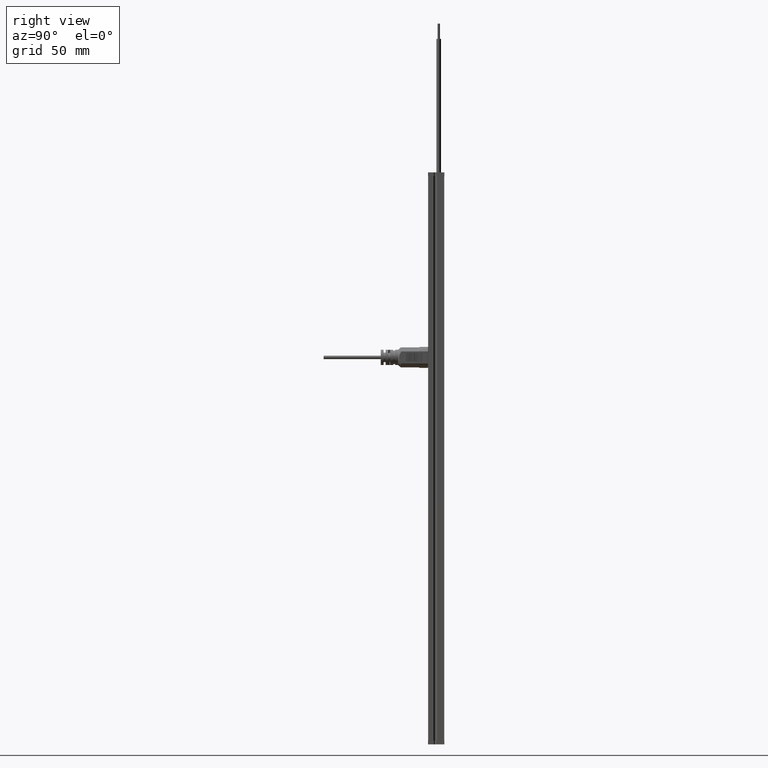
[diagram: clean part render]
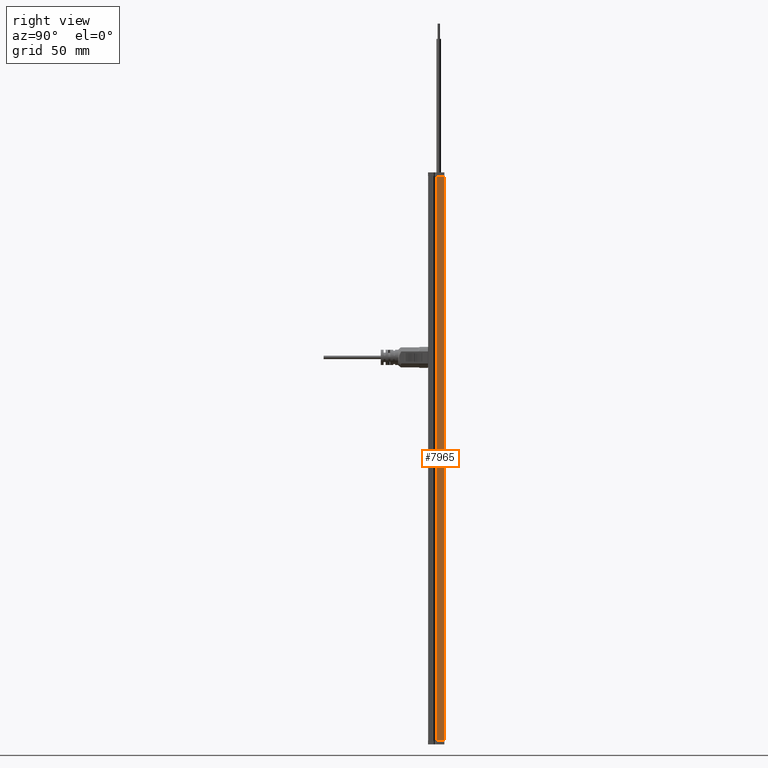
[diagram: same view with one face highlighted and labeled with its STEP entity id]
A machine part, right view. The second image highlights one B-rep face of the part: STEP entity #7965.
In plain terms, the highlighted planar face has unit normal (-1, 0, 0).
Its self-contained STEP definition (entity closure, byte-faithful):
#585 = LINE ( 'NONE', #11897, #7115 ) ;
#708 = DIRECTION ( 'NONE',  ( -4.565061778886335030E-16, -1.000000000000000000, 0.000000000000000000 ) ) ;
#1532 = PLANE ( 'NONE',  #10828 ) ;
#1885 = EDGE_LOOP ( 'NONE', ( #8197, #2493, #7843, #8564 ) ) ;
#2493 = ORIENTED_EDGE ( 'NONE', *, *, #4883, .F. ) ;
#2559 = VECTOR ( 'NONE', #7369, 1000.000000000000000 ) ;
#3053 = CARTESIAN_POINT ( 'NONE',  ( -7.700000000000001066, 3.799999999999999822, 148.0000000000000000 ) ) ;
#3918 = VECTOR ( 'NONE', #708, 1000.000000000000000 ) ;
#3976 = CARTESIAN_POINT ( 'NONE',  ( -7.700000000000001066, 3.799999999999999822, 148.0000000000000000 ) ) ;
#4413 = VERTEX_POINT ( 'NONE', #9467 ) ;
#4883 = EDGE_CURVE ( 'NONE', #12539, #12430, #13144, .T. ) ;
#5162 = DIRECTION ( 'NONE',  ( 1.000000000000000000, -4.565061778886335030E-16, 0.000000000000000000 ) ) ;
#7115 = VECTOR ( 'NONE', #8303, 1000.000000000000000 ) ;
#7369 = DIRECTION ( 'NONE',  ( -0.000000000000000000, -0.000000000000000000, -1.000000000000000000 ) ) ;
#7569 = LINE ( 'NONE', #9701, #2559 ) ;
#7600 = CARTESIAN_POINT ( 'NONE',  ( -7.700000000000002842, 0.000000000000000000, 148.0000000000000000 ) ) ;
#7843 = ORIENTED_EDGE ( 'NONE', *, *, #12717, .F. ) ;
#7965 = ADVANCED_FACE ( 'NONE', ( #15106 ), #1532, .F. ) ;
#8197 = ORIENTED_EDGE ( 'NONE', *, *, #12190, .T. ) ;
#8303 = DIRECTION ( 'NONE',  ( -4.565061778886335030E-16, -1.000000000000000000, 0.000000000000000000 ) ) ;
#8564 = ORIENTED_EDGE ( 'NONE', *, *, #15448, .T. ) ;
#9095 = CARTESIAN_POINT ( 'NONE',  ( -7.700000000000002842, 0.000000000000000000, 148.0000000000000000 ) ) ;
#9467 = CARTESIAN_POINT ( 'NONE',  ( -7.700000000000001066, 3.799999999999999822, -148.0000000000000000 ) ) ;
#9659 = CARTESIAN_POINT ( 'NONE',  ( -7.700000000000001066, 3.799999999999999822, 148.0000000000000000 ) ) ;
#9701 = CARTESIAN_POINT ( 'NONE',  ( -7.700000000000001066, 3.799999999999999822, 148.0000000000000000 ) ) ;
#9925 = CARTESIAN_POINT ( 'NONE',  ( -7.700000000000002842, 0.000000000000000000, -148.0000000000000000 ) ) ;
#10418 = DIRECTION ( 'NONE',  ( -0.000000000000000000, -0.000000000000000000, -1.000000000000000000 ) ) ;
#10828 = AXIS2_PLACEMENT_3D ( 'NONE', #3976, #5162, #13515 ) ;
#11897 = CARTESIAN_POINT ( 'NONE',  ( -7.700000000000001066, 3.799999999999999822, -148.0000000000000000 ) ) ;
#12190 = EDGE_CURVE ( 'NONE', #4413, #12430, #585, .T. ) ;
#12430 = VERTEX_POINT ( 'NONE', #9925 ) ;
#12539 = VERTEX_POINT ( 'NONE', #7600 ) ;
#12717 = EDGE_CURVE ( 'NONE', #12808, #12539, #14000, .T. ) ;
#12808 = VERTEX_POINT ( 'NONE', #9659 ) ;
#13144 = LINE ( 'NONE', #9095, #13892 ) ;
#13515 = DIRECTION ( 'NONE',  ( 4.565061778886335030E-16, 1.000000000000000000, 0.000000000000000000 ) ) ;
#13892 = VECTOR ( 'NONE', #10418, 1000.000000000000000 ) ;
#14000 = LINE ( 'NONE', #3053, #3918 ) ;
#15106 = FACE_OUTER_BOUND ( 'NONE', #1885, .T. ) ;
#15448 = EDGE_CURVE ( 'NONE', #12808, #4413, #7569, .T. ) ;